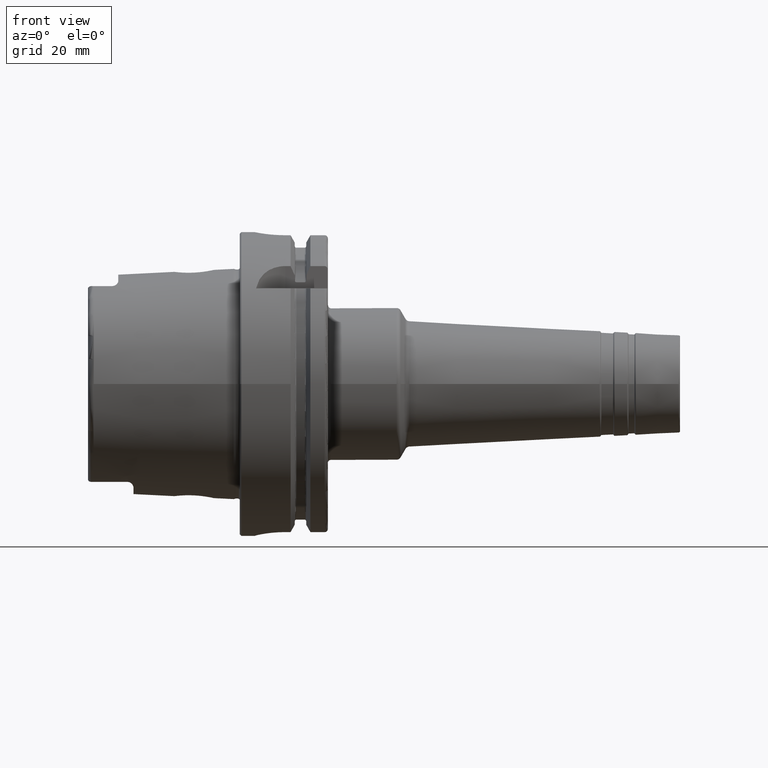
[diagram: clean part render]
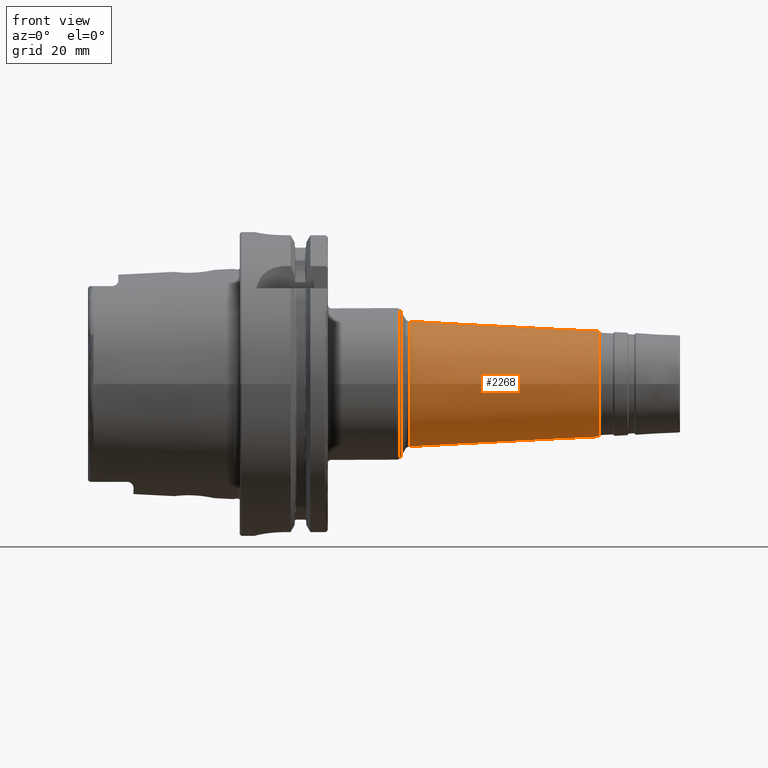
[diagram: same view with one face highlighted and labeled with its STEP entity id]
A machine part, front view. The second image highlights one B-rep face of the part: STEP entity #2268.
In plain terms, the highlighted conical surface has half-angle 3 deg.
Its self-contained STEP definition (entity closure, byte-faithful):
#178=LINE('',#3522,#290);
#290=VECTOR('',#2770,19.0461245134913);
#402=CONICAL_SURFACE('',#2433,19.0461245134913,0.05235987755983);
#427=FACE_OUTER_BOUND('',#562,.T.);
#562=EDGE_LOOP('',(#1506,#1507,#1508,#1509,#1510,#1511));
#708=CIRCLE('',#2427,20.6740759768665);
#709=CIRCLE('',#2428,20.6740759768665);
#713=CIRCLE('',#2434,17.387635362879);
#714=CIRCLE('',#2435,17.387635362879);
#888=VERTEX_POINT('',#3506);
#889=VERTEX_POINT('',#3508);
#892=VERTEX_POINT('',#3519);
#893=VERTEX_POINT('',#3520);
#1128=EDGE_CURVE('',#888,#889,#708,.T.);
#1129=EDGE_CURVE('',#889,#888,#709,.T.);
#1134=EDGE_CURVE('',#892,#893,#713,.T.);
#1135=EDGE_CURVE('',#892,#889,#178,.T.);
#1136=EDGE_CURVE('',#893,#892,#714,.T.);
#1506=ORIENTED_EDGE('',*,*,#1134,.F.);
#1507=ORIENTED_EDGE('',*,*,#1135,.T.);
#1508=ORIENTED_EDGE('',*,*,#1128,.F.);
#1509=ORIENTED_EDGE('',*,*,#1129,.F.);
#1510=ORIENTED_EDGE('',*,*,#1135,.F.);
#1511=ORIENTED_EDGE('',*,*,#1136,.F.);
#2268=ADVANCED_FACE('',(#427),#402,.T.);
#2427=AXIS2_PLACEMENT_3D('',#3509,#2753,#2754);
#2428=AXIS2_PLACEMENT_3D('',#3510,#2755,#2756);
#2433=AXIS2_PLACEMENT_3D('',#3518,#2766,#2767);
#2434=AXIS2_PLACEMENT_3D('',#3521,#2768,#2769);
#2435=AXIS2_PLACEMENT_3D('',#3523,#2771,#2772);
#2753=DIRECTION('center_axis',(-1.,0.,0.));
#2754=DIRECTION('ref_axis',(0.,-1.,3.06161699786838E-17));
#2755=DIRECTION('center_axis',(-1.,0.,0.));
#2756=DIRECTION('ref_axis',(0.,-1.,3.06161699786838E-17));
#2766=DIRECTION('center_axis',(-1.,0.,0.));
#2767=DIRECTION('ref_axis',(0.,1.,0.));
#2768=DIRECTION('center_axis',(1.,0.,0.));
#2769=DIRECTION('ref_axis',(0.,-1.,3.06161699786838E-17));
#2770=DIRECTION('',(-0.998629534754574,-0.0523359562429439,-6.40930612932372E-18));
#2771=DIRECTION('center_axis',(1.,0.,0.));
#2772=DIRECTION('ref_axis',(0.,-1.,3.06161699786838E-17));
#3506=CARTESIAN_POINT('',(55.8133173965834,-2.53184409703988E-15,20.6740759768665));
#3508=CARTESIAN_POINT('',(55.8133173965834,-20.6740759768665,-2.53184409703988E-15));
#3509=CARTESIAN_POINT('Origin',(55.8133173965834,0.,-3.16480512129985E-15));
#3510=CARTESIAN_POINT('Origin',(55.8133173965834,0.,-3.16480512129985E-15));
#3518=CARTESIAN_POINT('Origin',(86.8764817902327,0.,0.));
#3519=CARTESIAN_POINT('',(118.522339968181,-17.387635362879,-2.12937119918911E-15));
#3520=CARTESIAN_POINT('',(118.522339968181,-2.12937119918911E-15,17.387635362879));
#3521=CARTESIAN_POINT('Origin',(118.522339968181,0.,-2.66171399898638E-15));
#3522=CARTESIAN_POINT('',(86.8764817902327,-19.0461245134913,-2.33247754216091E-15));
#3523=CARTESIAN_POINT('Origin',(118.522339968181,0.,-2.66171399898638E-15));